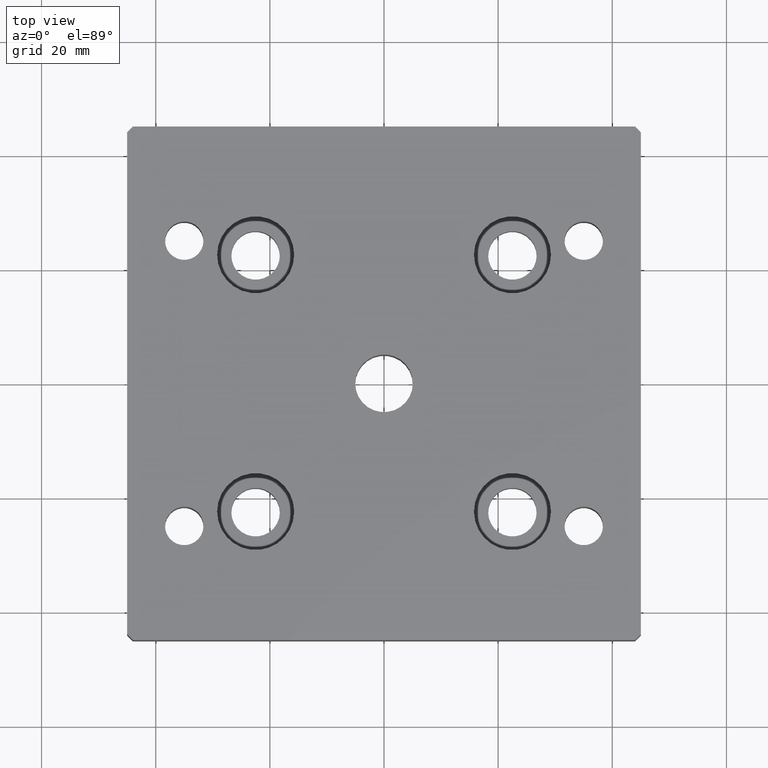
[diagram: clean part render]
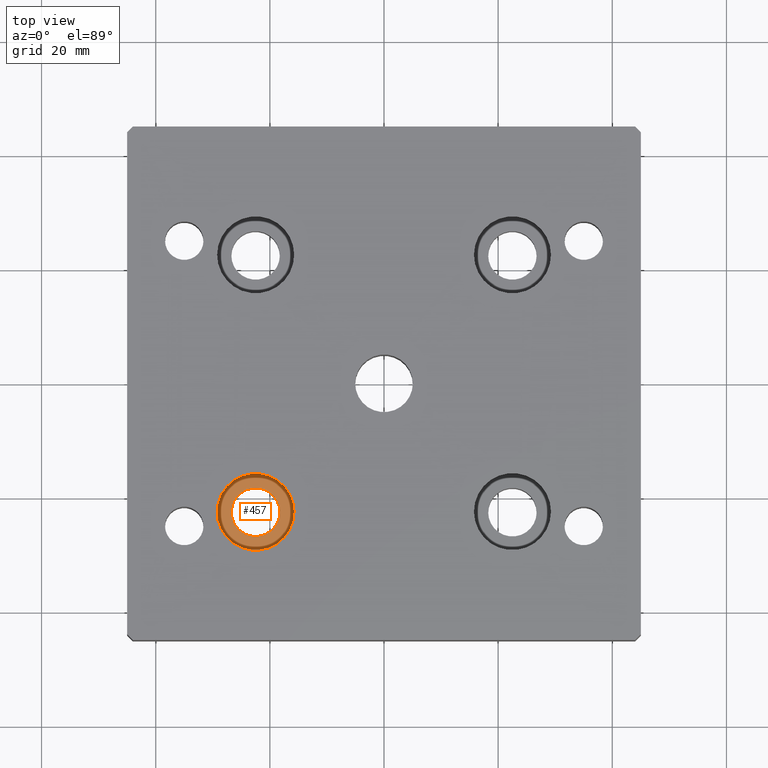
[diagram: same view with one face highlighted and labeled with its STEP entity id]
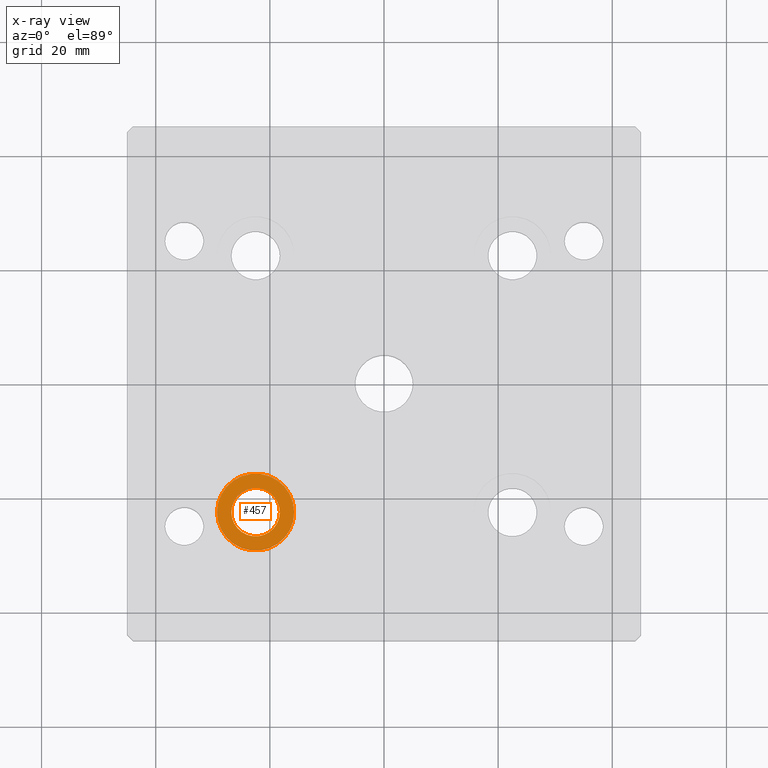
[diagram: x-ray of the same camera — body ghosted, the highlighted face saturated]
A machine part, top view. The second image highlights one B-rep face of the part: STEP entity #457.
The next image is the same camera in x-ray: the body ghosted, the highlighted face saturated — about 0% of this face is hidden behind the body in this view.
In plain terms, the highlighted planar face has unit normal (0, 0, -1).
Its self-contained STEP definition (entity closure, byte-faithful):
#76=PLANE('',#511);
#110=FACE_BOUND('',#198,.T.);
#137=FACE_OUTER_BOUND('',#197,.T.);
#197=EDGE_LOOP('',(#415));
#198=EDGE_LOOP('',(#416));
#225=CIRCLE('',#510,4.25);
#226=CIRCLE('',#512,6.75);
#267=VERTEX_POINT('',#760);
#268=VERTEX_POINT('',#763);
#317=EDGE_CURVE('',#267,#267,#225,.T.);
#318=EDGE_CURVE('',#268,#268,#226,.T.);
#415=ORIENTED_EDGE('',*,*,#318,.T.);
#416=ORIENTED_EDGE('',*,*,#317,.F.);
#457=ADVANCED_FACE('',(#137,#110),#76,.F.);
#510=AXIS2_PLACEMENT_3D('',#761,#638,#639);
#511=AXIS2_PLACEMENT_3D('',#762,#640,#641);
#512=AXIS2_PLACEMENT_3D('',#764,#642,#643);
#638=DIRECTION('center_axis',(0.,0.,1.));
#639=DIRECTION('ref_axis',(1.,0.,0.));
#640=DIRECTION('center_axis',(0.,0.,-1.));
#641=DIRECTION('ref_axis',(-1.,0.,0.));
#642=DIRECTION('center_axis',(0.,0.,1.));
#643=DIRECTION('ref_axis',(1.,0.,0.));
#760=CARTESIAN_POINT('',(-26.74999999991,-22.49999999991,-5.5));
#761=CARTESIAN_POINT('Origin',(-22.49999999991,-22.49999999991,-5.5));
#762=CARTESIAN_POINT('Origin',(-35.99999999991,-35.99999999991,-5.5));
#763=CARTESIAN_POINT('',(-29.24999999991,-22.49999999991,-5.5));
#764=CARTESIAN_POINT('Origin',(-22.49999999991,-22.49999999991,-5.5));